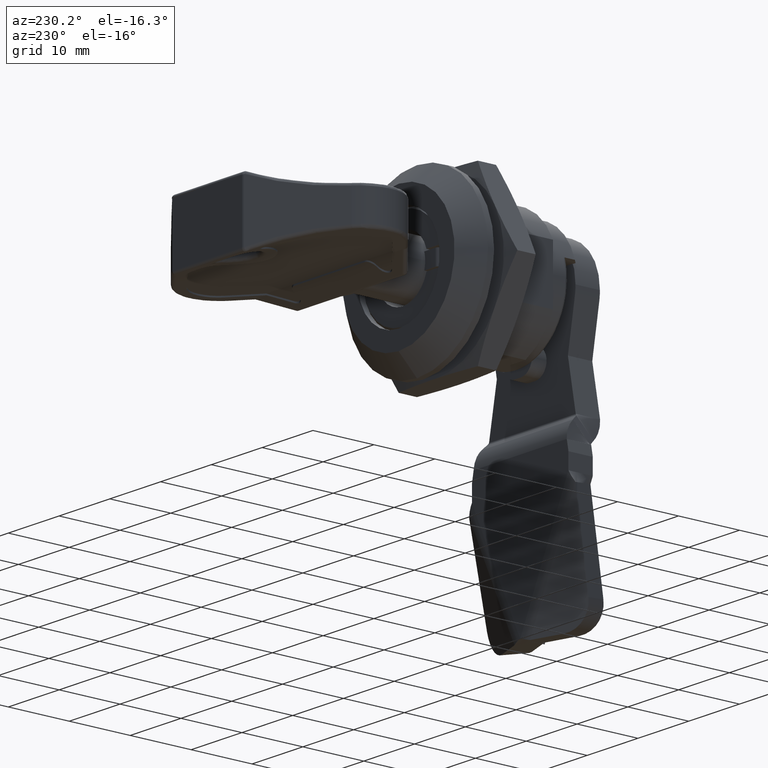
[diagram: clean part render]
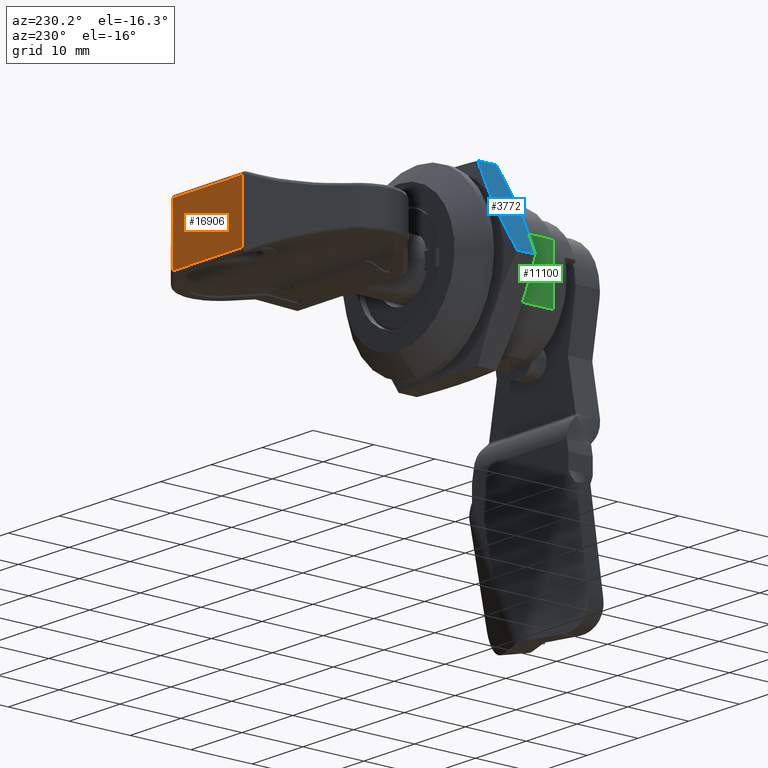
[diagram: same view with three faces highlighted in distinct colors, each labeled with its STEP entity id]
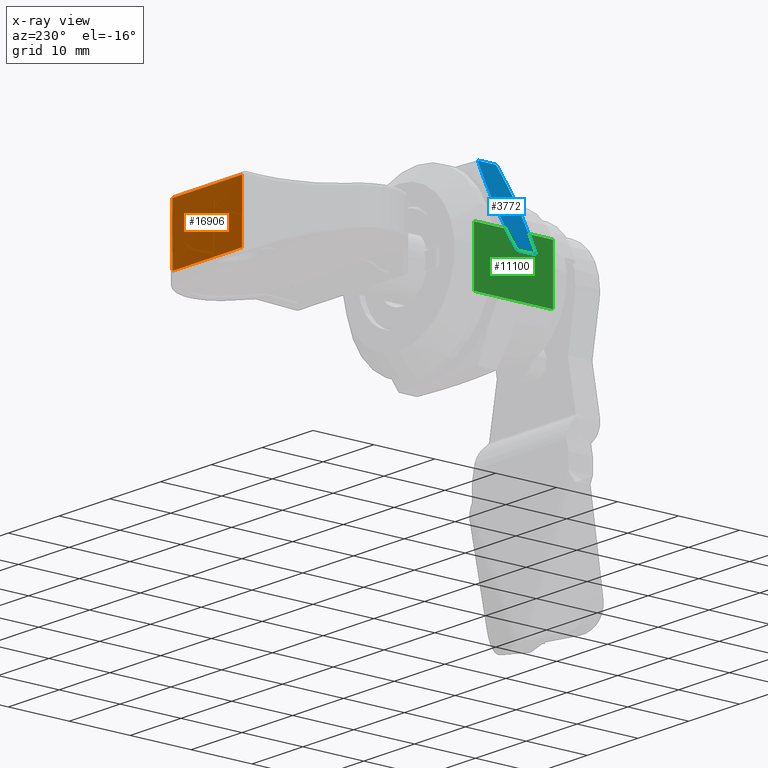
[diagram: x-ray of the same camera — body ghosted, the three highlighted faces saturated]
A machine part, auxiliary view with three faces highlighted in distinct colors.
The next image is the same camera in x-ray (body ghosted, the three faces saturated) — at least one of them is partly hidden behind the body in this view.
Their STEP definitions:

[orange] entity #16906 — the highlighted planar face has unit normal (0, 1, -0).
#505 = LINE ( 'NONE', #18186, #11794 ) ;
#506 = VECTOR ( 'NONE', #5838, 1000.000000000000000 ) ;
#658 = VERTEX_POINT ( 'NONE', #6572 ) ;
#991 = FACE_OUTER_BOUND ( 'NONE', #5918, .T. ) ;
#1302 = CARTESIAN_POINT ( 'NONE',  ( 3.222632432306037575, 57.30000000000012506, 13.33516483155196042 ) ) ;
#1972 = VERTEX_POINT ( 'NONE', #10146 ) ;
#2757 = LINE ( 'NONE', #1302, #506 ) ;
#3212 = CARTESIAN_POINT ( 'NONE',  ( 16.86503301628206941, 57.30000000000023874, 13.33516483155197285 ) ) ;
#3376 = ORIENTED_EDGE ( 'NONE', *, *, #15009, .F. ) ;
#3488 = DIRECTION ( 'NONE',  ( -1.000000000000000000, 1.627250025346605968E-17, 4.177214130152150694E-15 ) ) ;
#5152 = LINE ( 'NONE', #6694, #9128 ) ;
#5496 = CARTESIAN_POINT ( 'NONE',  ( 17.05431692308124525, 57.22397700715220736, 13.37032232616553884 ) ) ;
#5838 = DIRECTION ( 'NONE',  ( 4.177214130152150694E-15, 1.708564700648520199E-17, 1.000000000000000000 ) ) ;
#5918 = EDGE_LOOP ( 'NONE', ( #9883, #18686, #3376, #10538 ) ) ;
#6365 = EDGE_CURVE ( 'NONE', #18144, #12378, #6385, .T. ) ;
#6367 = EDGE_CURVE ( 'NONE', #18144, #658, #505, .T. ) ;
#6385 = LINE ( 'NONE', #3212, #10536 ) ;
#6572 = CARTESIAN_POINT ( 'NONE',  ( 3.222632432306037575, 57.29999999999846239, 13.33516483155196042 ) ) ;
#6694 = CARTESIAN_POINT ( 'NONE',  ( 30.04383272429397422, 57.30000000000023874, 3.764835168447899783 ) ) ;
#8170 = AXIS2_PLACEMENT_3D ( 'NONE', #18683, #8231, #14164 ) ;
#8231 = DIRECTION ( 'NONE',  ( 1.627250025346598880E-17, 1.000000000000000000, -1.708564700648549782E-17 ) ) ;
#8328 = PLANE ( 'NONE',  #8170 ) ;
#9128 = VECTOR ( 'NONE', #16865, 1000.000000000000000 ) ;
#9883 = ORIENTED_EDGE ( 'NONE', *, *, #6367, .F. ) ;
#10146 = CARTESIAN_POINT ( 'NONE',  ( 3.222629383587942264, 57.29999999999080273, 3.764835168448011693 ) ) ;
#10536 = VECTOR ( 'NONE', #13756, 1000.000000000000000 ) ;
#10538 = ORIENTED_EDGE ( 'NONE', *, *, #16079, .T. ) ;
#11794 = VECTOR ( 'NONE', #3488, 1000.000000000000000 ) ;
#12378 = VERTEX_POINT ( 'NONE', #13022 ) ;
#13022 = CARTESIAN_POINT ( 'NONE',  ( 16.86503400269698361, 57.29999999999935056, 3.764835168447968616 ) ) ;
#13756 = DIRECTION ( 'NONE',  ( -4.177214130152150694E-15, -1.708564700648520199E-17, -1.000000000000000000 ) ) ;
#14164 = DIRECTION ( 'NONE',  ( 1.000000000000000000, -1.627250025346605968E-17, -4.177214130152150694E-15 ) ) ;
#15009 = EDGE_CURVE ( 'NONE', #1972, #12378, #5152, .T. ) ;
#16079 = EDGE_CURVE ( 'NONE', #1972, #658, #2757, .T. ) ;
#16865 = DIRECTION ( 'NONE',  ( 1.000000000000000000, -1.627250025346605968E-17, -4.177214130152150694E-15 ) ) ;
#16906 = ADVANCED_FACE ( 'NONE', ( #991 ), #8328, .T. ) ;
#18144 = VERTEX_POINT ( 'NONE', #5496 ) ;
#18186 = CARTESIAN_POINT ( 'NONE',  ( 30.04383272429401686, 57.29999999999524363, 13.33516483155190357 ) ) ;
#18683 = CARTESIAN_POINT ( 'NONE',  ( 30.04383272429401686, 57.30000000000001847, 13.33516483155190357 ) ) ;
#18686 = ORIENTED_EDGE ( 'NONE', *, *, #6365, .T. ) ;

[blue] entity #3772 — the highlighted planar face has unit normal (0.866, 0, -0.5).
#198 = CARTESIAN_POINT ( 'NONE',  ( -2.206749243244789049, 15.91084054541528126, 14.33128255339957136 ) ) ;
#290 = CARTESIAN_POINT ( 'NONE',  ( -4.459337307067551492, 16.16917003070690484, 10.42981781357580040 ) ) ;
#364 = ORIENTED_EDGE ( 'NONE', *, *, #11085, .T. ) ;
#941 = CARTESIAN_POINT ( 'NONE',  ( -0.6071269644745783678, 15.93795395199136244, 17.10206797501479414 ) ) ;
#1468 = CARTESIAN_POINT ( 'NONE',  ( -1.647510169625398424, 15.89999999999973035, 15.30000009902315661 ) ) ;
#1549 = EDGE_CURVE ( 'NONE', #8600, #7620, #11021, .T. ) ;
#1942 = CARTESIAN_POINT ( 'NONE',  ( -1.000494350490948037, 19.88543057942003855, 16.42055053176418156 ) ) ;
#2056 = LINE ( 'NONE', #10767, #15309 ) ;
#2127 = DIRECTION ( 'NONE',  ( -0.5000000000000198730, -8.843325062122002083E-16, -0.8660254037844270503 ) ) ;
#2232 = CARTESIAN_POINT ( 'NONE',  ( -3.866200078699325804, 19.73023297927995756, 11.45694683042376205 ) ) ;
#2296 = CARTESIAN_POINT ( 'NONE',  ( 0.1267075664973543458, 16.00892695611017302, 18.37303702278212114 ) ) ;
#2523 = CARTESIAN_POINT ( 'NONE',  ( -2.940128921215178437, 19.84149556137553461, 13.06103151595250722 ) ) ;
#2923 = VERTEX_POINT ( 'NONE', #6679 ) ;
#3013 = CARTESIAN_POINT ( 'NONE',  ( -1.967190710327655356, 15.90271108969795399, 14.74618378404497676 ) ) ;
#3191 = CARTESIAN_POINT ( 'NONE',  ( -2.525962188039422962, 15.92703402069670027, 13.77855274217178483 ) ) ;
#3306 = CARTESIAN_POINT ( 'NONE',  ( -0.3547759562493714713, 19.84214023770307733, 17.53897382281819972 ) ) ;
#3395 = CARTESIAN_POINT ( 'NONE',  ( -1.485330547065159434, 19.89999890017013229, 15.58091262009421207 ) ) ;
#3486 = CARTESIAN_POINT ( 'NONE',  ( 0.9312869693723010434, 19.68472116281658302, 19.76661263270892377 ) ) ;
#3493 = CARTESIAN_POINT ( 'NONE',  ( 2.249604090233770837, 15.89999999999973745, 22.04999999999929372 ) ) ;
#3665 = EDGE_CURVE ( 'NONE', #7620, #10232, #2056, .T. ) ;
#3742 = CARTESIAN_POINT ( 'NONE',  ( 0.6919257872889733596, 16.08836422051831505, 19.35170700053518544 ) ) ;
#3772 = ADVANCED_FACE ( 'NONE', ( #6179 ), #18078, .F. ) ;
#3777 = CARTESIAN_POINT ( 'NONE',  ( -5.544624495180467960, 19.40000001164901988, 8.549999915741732792 ) ) ;
#3874 = CARTESIAN_POINT ( 'NONE',  ( -1.971844215887320173, 19.89999780685242925, 14.73825539934574458 ) ) ;
#4135 = CARTESIAN_POINT ( 'NONE',  ( 0.9332473266960831237, 16.12731111694705532, 19.76943751478969347 ) ) ;
#4449 = CARTESIAN_POINT ( 'NONE',  ( -4.139710468523040809, 16.11307320290207912, 10.98335736827782938 ) ) ;
#4546 = CARTESIAN_POINT ( 'NONE',  ( -3.503869412053337129, 16.01998480536873259, 12.08468364270312101 ) ) ;
#4577 = B_SPLINE_CURVE_WITH_KNOTS ( 'NONE', 3,
 ( #4746, #3395, #15020, #16642, #1942, #16738, #17988, #9481, #3306, #10652, #13943, #15393, #6562, #7926, #3486, #16550, #9293 ),
 .UNSPECIFIED., .F., .F.,
 ( 4, 2, 2, 2, 2, 1, 2, 2, 4 ),
 ( 0.0000000000000000000, 0.1249999999999991118, 0.1874999999999986677, 0.2499999999999982236, 0.3749999999999985012, 0.4374999999999980571, 0.4687499999999978906, 0.4999999999999976685, 1.000000000000000000 ),
 .UNSPECIFIED. ) ;
#4746 = CARTESIAN_POINT ( 'NONE',  ( -1.647510092066557075, 19.90000000000017621, 15.30000023335536952 ) ) ;
#4944 = DIRECTION ( 'NONE',  ( -1.768664140848895068E-15, 1.000000000000000000, -7.083634548733947862E-22 ) ) ;
#5416 = EDGE_CURVE ( 'NONE', #13546, #8600, #5482, .T. ) ;
#5482 = B_SPLINE_CURVE_WITH_KNOTS ( 'NONE', 3,
 ( #12958, #14216, #14307, #5580, #4135, #3742, #17385, #15937, #9638, #15556, #2296, #14117, #15747, #12662, #11186, #941, #6826, #12755, #18625 ),
 .UNSPECIFIED., .F., .F.,
 ( 4, 2, 2, 1, 2, 2, 2, 2, 2, 4 ),
 ( 0.0000000000000000000, 0.2499999999999994449, 0.3749999999999991673, 0.4374999999999984457, 0.4687499999999986122, 0.4999999999999988343, 0.6249999999999986677, 0.6874999999999990008, 0.7499999999999994449, 1.000000000000000000 ),
 .UNSPECIFIED. ) ;
#5580 = CARTESIAN_POINT ( 'NONE',  ( 1.094761105664376455, 16.15568208871805567, 20.04908139914569531 ) ) ;
#5795 = CARTESIAN_POINT ( 'NONE',  ( -5.544624543825980467, 16.40000000000311076, 8.549999999999888800 ) ) ;
#6083 = ORIENTED_EDGE ( 'NONE', *, *, #5416, .F. ) ;
#6087 = CARTESIAN_POINT ( 'NONE',  ( -4.498492989760511485, 16.17642040970743267, 10.36200370510438518 ) ) ;
#6179 = FACE_OUTER_BOUND ( 'NONE', #17950, .T. ) ;
#6239 = ORIENTED_EDGE ( 'NONE', *, *, #9218, .F. ) ;
#6516 = ORIENTED_EDGE ( 'NONE', *, *, #1549, .F. ) ;
#6562 = CARTESIAN_POINT ( 'NONE',  ( 0.2099886468774730119, 19.77991021890330003, 18.51727491967693950 ) ) ;
#6646 = AXIS2_PLACEMENT_3D ( 'NONE', #18355, #7916, #2127 ) ;
#6679 = CARTESIAN_POINT ( 'NONE',  ( -1.647510092066557075, 19.90000000000017621, 15.30000023335536952 ) ) ;
#6826 = CARTESIAN_POINT ( 'NONE',  ( -1.009224782376347607, 15.91084580640633028, 16.40562347804750232 ) ) ;
#6862 = CARTESIAN_POINT ( 'NONE',  ( -3.986510383497773091, 19.71166126626987847, 11.24842040717927460 ) ) ;
#6957 = CARTESIAN_POINT ( 'NONE',  ( -3.020490383495919140, 19.83404052199550449, 12.92182138422905879 ) ) ;
#7246 = CARTESIAN_POINT ( 'NONE',  ( -2.932397414947236935, 15.95714650465833095, 13.07445375514436492 ) ) ;
#7620 = VERTEX_POINT ( 'NONE', #5795 ) ;
#7916 = DIRECTION ( 'NONE',  ( 0.8660254037844271613, 1.531708831519719046E-15, -0.5000000000000199840 ) ) ;
#7926 = CARTESIAN_POINT ( 'NONE',  ( 0.2512097266905308768, 19.77461610399713976, 18.58868068508344251 ) ) ;
#8525 = CARTESIAN_POINT ( 'NONE',  ( 2.249604090234227805, 16.39999999999990266, 22.04999999999929372 ) ) ;
#8600 = VERTEX_POINT ( 'NONE', #15354 ) ;
#8904 = CARTESIAN_POINT ( 'NONE',  ( -4.869724100401824352, 16.24642777704488239, 9.719016477367354412 ) ) ;
#8996 = CARTESIAN_POINT ( 'NONE',  ( -2.446737501534750336, 15.92235674471221785, 13.91572672095859531 ) ) ;
#9218 = EDGE_CURVE ( 'NONE', #10232, #2923, #9649, .T. ) ;
#9293 = CARTESIAN_POINT ( 'NONE',  ( 2.249604041587344394, 19.40000001164581178, 22.04999991574235807 ) ) ;
#9481 = CARTESIAN_POINT ( 'NONE',  ( -0.5153393002152121261, 19.85573711961910703, 17.26097949854354141 ) ) ;
#9638 = CARTESIAN_POINT ( 'NONE',  ( 0.3712392499274189683, 16.04139817196816153, 18.79656215497151805 ) ) ;
#9649 = B_SPLINE_CURVE_WITH_KNOTS ( 'NONE', 3,
 ( #3777, #15683, #18563, #11038, #11226, #6862, #2232, #12890, #17321, #17127, #9771, #16942, #6957, #2523, #18759, #18851, #18665, #3874, #14042 ),
 .UNSPECIFIED., .F., .F.,
 ( 4, 2, 2, 1, 2, 2, 2, 2, 2, 4 ),
 ( 0.0000000000000000000, 0.2500000000000004441, 0.3750000000000007772, 0.4375000000000008882, 0.4687500000000007216, 0.5000000000000005551, 0.6250000000000007772, 0.6875000000000005551, 0.7500000000000003331, 1.000000000000000000 ),
 .UNSPECIFIED. ) ;
#9771 = CARTESIAN_POINT ( 'NONE',  ( -3.423446425155550088, 19.79084409615238727, 12.22398863715084794 ) ) ;
#10232 = VERTEX_POINT ( 'NONE', #13231 ) ;
#10259 = CARTESIAN_POINT ( 'NONE',  ( -1.807700258664887372, 15.90000084741674868, 15.02254981054448102 ) ) ;
#10353 = CARTESIAN_POINT ( 'NONE',  ( -5.544624543825980467, 16.40000000000311076, 8.549999999999888800 ) ) ;
#10453 = CARTESIAN_POINT ( 'NONE',  ( -3.743625713175414926, 16.05147409289466154, 11.66942456085332935 ) ) ;
#10634 = CARTESIAN_POINT ( 'NONE',  ( -4.259128048660754118, 16.13316056537653509, 10.77654569995719847 ) ) ;
#10652 = CARTESIAN_POINT ( 'NONE',  ( -0.1132946272879409161, 19.81779679830938790, 17.95723289073539775 ) ) ;
#10767 = CARTESIAN_POINT ( 'NONE',  ( -5.544624543825992902, 15.90000000000294378, 8.549999999999444711 ) ) ;
#10934 = LINE ( 'NONE', #3493, #11603 ) ;
#11021 = B_SPLINE_CURVE_WITH_KNOTS ( 'NONE', 3,
 ( #1468, #10259, #3013, #198, #17611, #8996, #3191, #12008, #7246, #11910, #13452, #13549, #17883, #4546, #17699, #16262, #10453, #13179, #4449, #10634, #17791, #290, #6087, #8904, #14825, #10353 ),
 .UNSPECIFIED., .F., .F.,
 ( 4, 2, 2, 2, 2, 2, 1, 2, 2, 2, 1, 2, 2, 4 ),
 ( 0.0000000000000000000, 0.1250000000000030809, 0.1875000000000046074, 0.2500000000000061617, 0.3750000000000086597, 0.4375000000000099365, 0.4687500000000105471, 0.4843750000000105471, 0.5000000000000105471, 0.6250000000000089928, 0.6875000000000081046, 0.7187500000000075495, 0.7500000000000068834, 1.000000000000000000 ),
 .UNSPECIFIED. ) ;
#11038 = CARTESIAN_POINT ( 'NONE',  ( -4.389077125618907615, 19.64433999628913696, 10.55080000145515129 ) ) ;
#11085 = EDGE_CURVE ( 'NONE', #13546, #18985, #10934, .T. ) ;
#11186 = CARTESIAN_POINT ( 'NONE',  ( -0.5249049903273290685, 15.94417414355169349, 17.24443884262531057 ) ) ;
#11226 = CARTESIAN_POINT ( 'NONE',  ( -4.227638898093112552, 19.67271265360066579, 10.83052447533876439 ) ) ;
#11603 = VECTOR ( 'NONE', #13863, 1000.000000000000000 ) ;
#11667 = CARTESIAN_POINT ( 'NONE',  ( 2.249604041587344394, 19.40000001164581178, 22.04999991574235807 ) ) ;
#11910 = CARTESIAN_POINT ( 'NONE',  ( -3.176714253066636129, 15.98167833048100306, 12.65125678926894359 ) ) ;
#12008 = CARTESIAN_POINT ( 'NONE',  ( -2.770027736897806570, 15.94348542721226636, 13.35582076936434248 ) ) ;
#12662 = CARTESIAN_POINT ( 'NONE',  ( -0.3622719918135153816, 15.95783657865671223, 17.52605638101802299 ) ) ;
#12755 = CARTESIAN_POINT ( 'NONE',  ( -1.327081509316184960, 15.90000169878129732, 15.85501299935724440 ) ) ;
#12890 = CARTESIAN_POINT ( 'NONE',  ( -3.746097073035097758, 19.74745080230325556, 11.66507631688840085 ) ) ;
#12958 = CARTESIAN_POINT ( 'NONE',  ( 2.249604090234227805, 16.39999999999990266, 22.04999999999929372 ) ) ;
#13179 = CARTESIAN_POINT ( 'NONE',  ( -3.901529783846704014, 16.07468473292231081, 11.39587940805517619 ) ) ;
#13231 = CARTESIAN_POINT ( 'NONE',  ( -5.544624495180467960, 19.40000001164901988, 8.549999915741732792 ) ) ;
#13452 = CARTESIAN_POINT ( 'NONE',  ( -3.258276264487153462, 15.99052897403080742, 12.50999922322146496 ) ) ;
#13546 = VERTEX_POINT ( 'NONE', #8525 ) ;
#13549 = CARTESIAN_POINT ( 'NONE',  ( -3.380928215336307829, 16.00481499176890665, 12.29759154331362758 ) ) ;
#13863 = DIRECTION ( 'NONE',  ( -1.768664140848895068E-15, 1.000000000000000000, -7.083634548733947862E-22 ) ) ;
#13942 = ORIENTED_EDGE ( 'NONE', *, *, #3665, .F. ) ;
#13943 = CARTESIAN_POINT ( 'NONE',  ( 0.007608987936780899596, 19.80463804948263018, 18.16667497005846599 ) ) ;
#14042 = CARTESIAN_POINT ( 'NONE',  ( -1.647510092066557075, 19.90000000000017621, 15.30000023335536952 ) ) ;
#14117 = CARTESIAN_POINT ( 'NONE',  ( -0.03659952047506341566, 15.98987621586467256, 18.09008451401917483 ) ) ;
#14216 = CARTESIAN_POINT ( 'NONE',  ( 1.912074677580744231, 16.31919431493957617, 21.46539457774115434 ) ) ;
#14307 = CARTESIAN_POINT ( 'NONE',  ( 1.582544016251560715, 16.24801412648655941, 20.89400384293646695 ) ) ;
#14825 = CARTESIAN_POINT ( 'NONE',  ( -5.203627262884873872, 16.31836144168546099, 9.140637415040284708 ) ) ;
#15020 = CARTESIAN_POINT ( 'NONE',  ( -1.323775642451815004, 19.89722351057603689, 15.86058791440905047 ) ) ;
#15309 = VECTOR ( 'NONE', #4944, 1000.000000000000000 ) ;
#15354 = CARTESIAN_POINT ( 'NONE',  ( -1.647510169625398424, 15.89999999999973035, 15.30000009902315661 ) ) ;
#15393 = CARTESIAN_POINT ( 'NONE',  ( 0.1289620786358059157, 19.78999875696101185, 18.37690939587509931 ) ) ;
#15556 = CARTESIAN_POINT ( 'NONE',  ( 0.3323410901004753004, 16.03610807212986344, 18.72920449289402711 ) ) ;
#15683 = CARTESIAN_POINT ( 'NONE',  ( -5.207069409580229014, 19.48081446994292421, 9.134681191960025259 ) ) ;
#15747 = CARTESIAN_POINT ( 'NONE',  ( -0.2809336267490243344, 15.96534133435178759, 17.66690908914232239 ) ) ;
#15818 = ORIENTED_EDGE ( 'NONE', *, *, #17145, .F. ) ;
#15937 = CARTESIAN_POINT ( 'NONE',  ( 0.4513199903946147895, 16.05257569016385588, 18.93521503384035398 ) ) ;
#16262 = CARTESIAN_POINT ( 'NONE',  ( -3.566335060563222470, 16.02804150531726535, 11.97649894181954089 ) ) ;
#16550 = CARTESIAN_POINT ( 'NONE',  ( 1.574533286001288834, 19.56161179346670664, 20.88078016112398672 ) ) ;
#16642 = CARTESIAN_POINT ( 'NONE',  ( -1.081331578638894397, 19.88889899153969054, 16.28051057173133032 ) ) ;
#16738 = CARTESIAN_POINT ( 'NONE',  ( -0.8385555494416441213, 19.87710661029900905, 16.70110679068226034 ) ) ;
#16942 = CARTESIAN_POINT ( 'NONE',  ( -3.261953021396218233, 19.80970166087441697, 12.50359683684280654 ) ) ;
#17127 = CARTESIAN_POINT ( 'NONE',  ( -3.626680918477552140, 19.76398256861487468, 11.87197730310986366 ) ) ;
#17145 = EDGE_CURVE ( 'NONE', #2923, #18985, #4577, .T. ) ;
#17321 = CARTESIAN_POINT ( 'NONE',  ( -3.666052762739743009, 19.75862848654394099, 11.80376761034774624 ) ) ;
#17385 = CARTESIAN_POINT ( 'NONE',  ( 0.5715029286620411098, 16.06979316261087831, 19.14327217888295607 ) ) ;
#17611 = CARTESIAN_POINT ( 'NONE',  ( -2.286651928724964034, 15.91422771270364933, 14.19292141816596065 ) ) ;
#17699 = CARTESIAN_POINT ( 'NONE',  ( -3.544927110013462279, 16.02525183748812410, 12.01357640494591728 ) ) ;
#17791 = CARTESIAN_POINT ( 'NONE',  ( -4.379163927540587586, 16.15458761907784435, 10.56866695295437530 ) ) ;
#17883 = CARTESIAN_POINT ( 'NONE',  ( -3.442331070040462571, 16.01221051374131221, 12.19125733936034628 ) ) ;
#17950 = EDGE_LOOP ( 'NONE', ( #6516, #6083, #364, #15818, #6239, #13942 ) ) ;
#17988 = CARTESIAN_POINT ( 'NONE',  ( -0.7564756056585010269, 19.87218432597352091, 16.84331761634554070 ) ) ;
#18078 = PLANE ( 'NONE',  #6646 ) ;
#18355 = CARTESIAN_POINT ( 'NONE',  ( -5.544624543825992902, 15.90000000000294378, 8.549999999999444711 ) ) ;
#18563 = CARTESIAN_POINT ( 'NONE',  ( -4.876960457914518265, 19.55200127775836094, 9.705820434575672451 ) ) ;
#18625 = CARTESIAN_POINT ( 'NONE',  ( -1.647510169625398424, 15.89999999999973035, 15.30000009902315661 ) ) ;
#18665 = CARTESIAN_POINT ( 'NONE',  ( -2.293412966914305073, 19.88890124638787427, 14.18126228532428001 ) ) ;
#18759 = CARTESIAN_POINT ( 'NONE',  ( -2.779470824562691789, 19.85508981148160501, 13.33935378268781768 ) ) ;
#18851 = CARTESIAN_POINT ( 'NONE',  ( -2.700148372490968285, 19.86116258666140055, 13.47677872501592589 ) ) ;
#18985 = VERTEX_POINT ( 'NONE', #11667 ) ;

[green] entity #11100 — the highlighted planar face has unit normal (1, 0, -0).
#233 = LINE ( 'NONE', #18107, #9865 ) ;
#305 = CARTESIAN_POINT ( 'NONE',  ( 0.04383272429419465821, 13.90000020830698801, 7.931620740887211696 ) ) ;
#684 = EDGE_CURVE ( 'NONE', #12476, #6425, #5704, .T. ) ;
#928 = CARTESIAN_POINT ( 'NONE',  ( 0.04383272429418771932, 18.40876887482981772, 6.749999965282636794 ) ) ;
#957 = CARTESIAN_POINT ( 'NONE',  ( 0.04383272429396740943, 8.900000000003053913, 3.967424305044096489 ) ) ;
#1063 = CARTESIAN_POINT ( 'NONE',  ( 0.04383272429420333183, 8.900000000002942002, 8.549999999999888800 ) ) ;
#1106 = VECTOR ( 'NONE', #7378, 1000.000000000000114 ) ;
#1404 = LINE ( 'NONE', #6032, #17709 ) ;
#1687 = CARTESIAN_POINT ( 'NONE',  ( 0.04383122790892896026, 21.90000000000295088, 3.967427570429169936 ) ) ;
#1980 = PLANE ( 'NONE',  #9120 ) ;
#2023 = CARTESIAN_POINT ( 'NONE',  ( 0.04383272429417384153, 18.40876887482659896, 8.719368286263904366 ) ) ;
#2243 = VECTOR ( 'NONE', #11415, 1000.000000000000000 ) ;
#2375 = VERTEX_POINT ( 'NONE', #16228 ) ;
#2422 = DIRECTION ( 'NONE',  ( -6.966649479515111466E-15, -1.223717186302361345E-26, -1.000000000000000000 ) ) ;
#2667 = LINE ( 'NONE', #18598, #18047 ) ;
#3585 = DIRECTION ( 'NONE',  ( -2.944673590054323257E-15, 0.9849891078800409039, -0.1726165037233726718 ) ) ;
#3863 = LINE ( 'NONE', #12686, #2243 ) ;
#3928 = VERTEX_POINT ( 'NONE', #957 ) ;
#4325 = CARTESIAN_POINT ( 'NONE',  ( 0.04383272429398128722, 8.899999999999945288, 13.13257569495579347 ) ) ;
#4994 = VECTOR ( 'NONE', #10803, 1000.000000000000114 ) ;
#5704 = LINE ( 'NONE', #14344, #17123 ) ;
#5717 = VECTOR ( 'NONE', #11447, 1000.000000000000000 ) ;
#6032 = CARTESIAN_POINT ( 'NONE',  ( 0.04383272429418771932, 18.40876887482970758, 8.423962821132834122 ) ) ;
#6348 = LINE ( 'NONE', #14894, #18397 ) ;
#6425 = VERTEX_POINT ( 'NONE', #305 ) ;
#6465 = EDGE_CURVE ( 'NONE', #18236, #7463, #18465, .T. ) ;
#7285 = DIRECTION ( 'NONE',  ( 5.395562384133122152E-16, -0.9849891078800239175, -0.1726165037234696498 ) ) ;
#7378 = DIRECTION ( 'NONE',  ( 2.941285081680467998E-15, -0.9850781733923853478, 0.1721075021779162606 ) ) ;
#7463 = VERTEX_POINT ( 'NONE', #18840 ) ;
#7917 = EDGE_CURVE ( 'NONE', #7463, #8331, #233, .T. ) ;
#8108 = ORIENTED_EDGE ( 'NONE', *, *, #16412, .F. ) ;
#8331 = VERTEX_POINT ( 'NONE', #14225 ) ;
#8397 = LINE ( 'NONE', #1063, #16455 ) ;
#8839 = LINE ( 'NONE', #928, #1106 ) ;
#9120 = AXIS2_PLACEMENT_3D ( 'NONE', #12525, #9609, #14078 ) ;
#9276 = CARTESIAN_POINT ( 'NONE',  ( 0.04383272429395873582, 21.89999999999984226, 13.13257569495545951 ) ) ;
#9322 = EDGE_LOOP ( 'NONE', ( #9761, #11248, #16695, #17904, #18555, #15442, #16547 ) ) ;
#9609 = DIRECTION ( 'NONE',  ( 1.000000000000000000, 1.768665012403154026E-15, -6.966649479515110677E-15 ) ) ;
#9761 = ORIENTED_EDGE ( 'NONE', *, *, #16160, .F. ) ;
#9840 = VERTEX_POINT ( 'NONE', #4325 ) ;
#9865 = VECTOR ( 'NONE', #13771, 1000.000000000000000 ) ;
#9888 = LINE ( 'NONE', #10193, #5717 ) ;
#10193 = CARTESIAN_POINT ( 'NONE',  ( 0.04383272429418078042, 21.90000000000284075, 8.549999999999666755 ) ) ;
#10803 = DIRECTION ( 'NONE',  ( -5.432598007429979253E-16, 0.9850781733923705819, 0.1721075021780012482 ) ) ;
#11100 = ADVANCED_FACE ( 'NONE', ( #11157, #18401 ), #1980, .F. ) ;
#11157 = FACE_BOUND ( 'NONE', #9322, .T. ) ;
#11248 = ORIENTED_EDGE ( 'NONE', *, *, #7917, .F. ) ;
#11415 = DIRECTION ( 'NONE',  ( -6.966649479515111466E-15, -1.223717186302361345E-26, -1.000000000000000000 ) ) ;
#11447 = DIRECTION ( 'NONE',  ( 6.966649479515111466E-15, 1.223717186302361345E-26, 1.000000000000000000 ) ) ;
#11843 = EDGE_CURVE ( 'NONE', #14284, #9840, #6348, .T. ) ;
#12277 = DIRECTION ( 'NONE',  ( 1.768664140848895068E-15, -1.000000000000000000, 7.083634548733947862E-22 ) ) ;
#12357 = CARTESIAN_POINT ( 'NONE',  ( 0.04383272429419465821, 13.90000020830698801, 7.931620740887211696 ) ) ;
#12476 = VERTEX_POINT ( 'NONE', #13399 ) ;
#12492 = CARTESIAN_POINT ( 'NONE',  ( 0.04383272429416690263, 14.47558755915005158, 7.734684125772882446 ) ) ;
#12525 = CARTESIAN_POINT ( 'NONE',  ( 0.04383272429418078042, 21.89999999999984226, 18.54999999999967741 ) ) ;
#12686 = CARTESIAN_POINT ( 'NONE',  ( 0.04383272429418771932, 18.40876887482682278, 18.54999999999967741 ) ) ;
#12738 = EDGE_CURVE ( 'NONE', #6425, #14258, #15252, .T. ) ;
#13399 = CARTESIAN_POINT ( 'NONE',  ( 0.04383272429416690263, 13.90000020830698801, 7.537747510658664218 ) ) ;
#13771 = DIRECTION ( 'NONE',  ( -6.966649479515111466E-15, -1.223717186302361345E-26, -1.000000000000000000 ) ) ;
#14078 = DIRECTION ( 'NONE',  ( -6.966649479515110677E-15, -1.223717186302361345E-26, -1.000000000000000000 ) ) ;
#14225 = CARTESIAN_POINT ( 'NONE',  ( 0.04383272429418771932, 18.40876887482981772, 6.749999965282636794 ) ) ;
#14258 = VERTEX_POINT ( 'NONE', #2023 ) ;
#14284 = VERTEX_POINT ( 'NONE', #9276 ) ;
#14344 = CARTESIAN_POINT ( 'NONE',  ( 0.04383272429419465821, 13.90000020830404459, 18.54999999999945715 ) ) ;
#14894 = CARTESIAN_POINT ( 'NONE',  ( 0.04383272429395873582, 21.89999999999984226, 13.13257569495545951 ) ) ;
#15140 = EDGE_CURVE ( 'NONE', #18899, #14284, #9888, .T. ) ;
#15227 = ORIENTED_EDGE ( 'NONE', *, *, #17266, .F. ) ;
#15252 = LINE ( 'NONE', #12357, #4994 ) ;
#15442 = ORIENTED_EDGE ( 'NONE', *, *, #12738, .F. ) ;
#15776 = DIRECTION ( 'NONE',  ( 6.966649479515111466E-15, 1.223717186302361345E-26, 1.000000000000000000 ) ) ;
#15914 = DIRECTION ( 'NONE',  ( -1.768664140848895068E-15, 1.000000000000000000, -7.083634548733947862E-22 ) ) ;
#16041 = ORIENTED_EDGE ( 'NONE', *, *, #11843, .F. ) ;
#16122 = EDGE_LOOP ( 'NONE', ( #17836, #8108, #15227, #16041 ) ) ;
#16160 = EDGE_CURVE ( 'NONE', #8331, #12476, #8839, .T. ) ;
#16228 = CARTESIAN_POINT ( 'NONE',  ( 0.04383272429418771932, 18.40876887482970758, 8.423962821132834122 ) ) ;
#16345 = CARTESIAN_POINT ( 'NONE',  ( 0.04383272429416690263, 14.47558755915005158, 7.734684125772771424 ) ) ;
#16412 = EDGE_CURVE ( 'NONE', #3928, #18899, #2667, .T. ) ;
#16455 = VECTOR ( 'NONE', #2422, 1000.000000000000000 ) ;
#16547 = ORIENTED_EDGE ( 'NONE', *, *, #684, .F. ) ;
#16695 = ORIENTED_EDGE ( 'NONE', *, *, #6465, .F. ) ;
#17123 = VECTOR ( 'NONE', #15776, 1000.000000000000000 ) ;
#17235 = EDGE_CURVE ( 'NONE', #14258, #2375, #3863, .T. ) ;
#17266 = EDGE_CURVE ( 'NONE', #9840, #3928, #8397, .T. ) ;
#17709 = VECTOR ( 'NONE', #7285, 1000.000000000000114 ) ;
#17835 = EDGE_CURVE ( 'NONE', #2375, #18236, #1404, .T. ) ;
#17836 = ORIENTED_EDGE ( 'NONE', *, *, #15140, .F. ) ;
#17904 = ORIENTED_EDGE ( 'NONE', *, *, #17835, .F. ) ;
#18047 = VECTOR ( 'NONE', #15914, 1000.000000000000000 ) ;
#18107 = CARTESIAN_POINT ( 'NONE',  ( 0.04383272429418771932, 18.40876887482682278, 18.54999999999967741 ) ) ;
#18236 = VERTEX_POINT ( 'NONE', #16345 ) ;
#18251 = VECTOR ( 'NONE', #3585, 1000.000000000000227 ) ;
#18397 = VECTOR ( 'NONE', #12277, 1000.000000000000000 ) ;
#18401 = FACE_OUTER_BOUND ( 'NONE', #16122, .T. ) ;
#18465 = LINE ( 'NONE', #12492, #18251 ) ;
#18555 = ORIENTED_EDGE ( 'NONE', *, *, #17235, .F. ) ;
#18598 = CARTESIAN_POINT ( 'NONE',  ( 0.04383272429396740943, 8.900000000003053913, 3.967424305044096489 ) ) ;
#18840 = CARTESIAN_POINT ( 'NONE',  ( 0.04383272429417384153, 18.40876887482981772, 7.045405430413374859 ) ) ;
#18899 = VERTEX_POINT ( 'NONE', #1687 ) ;